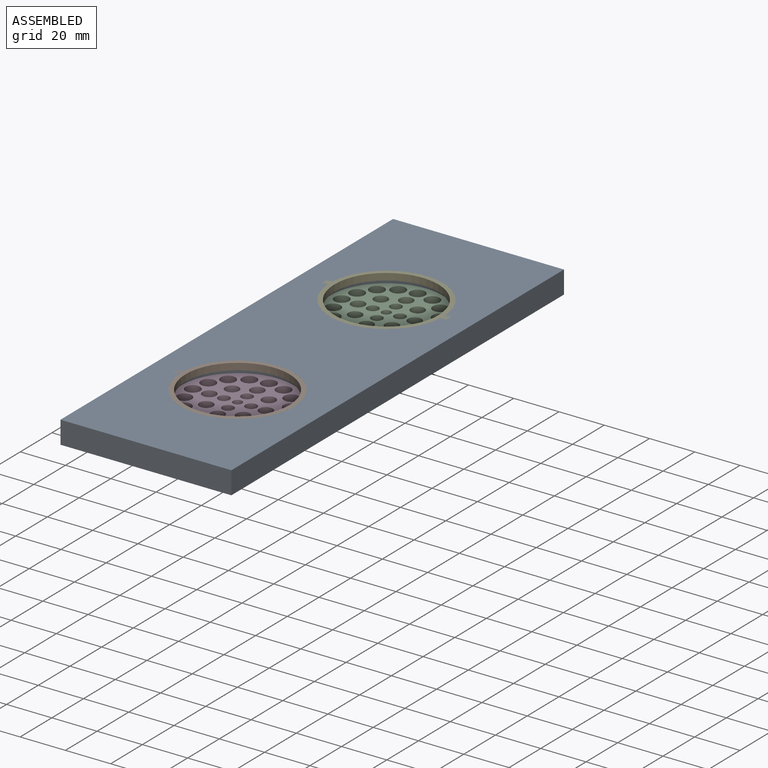
[diagram: assembled view]
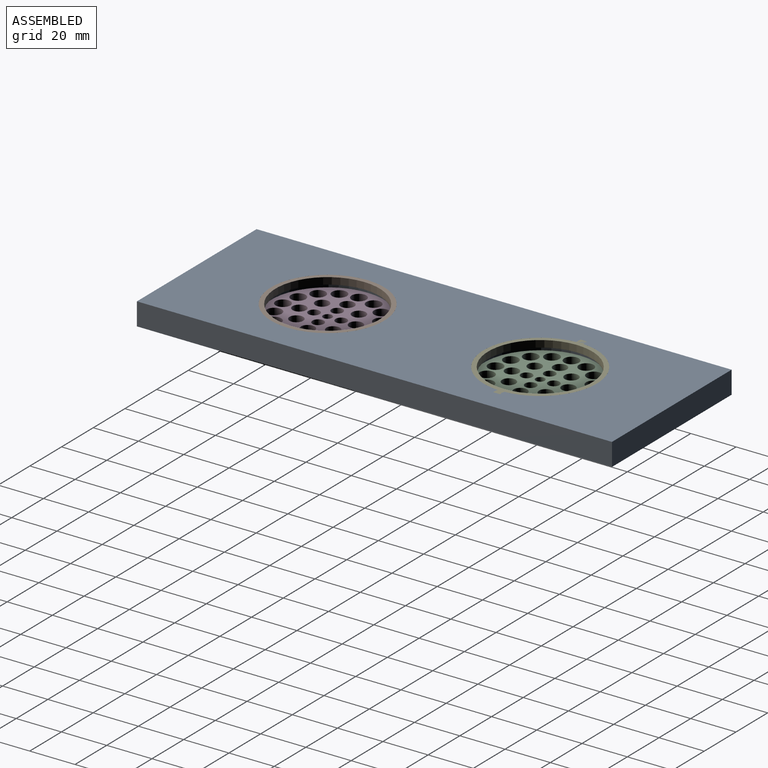
[diagram: assembled view, second angle]
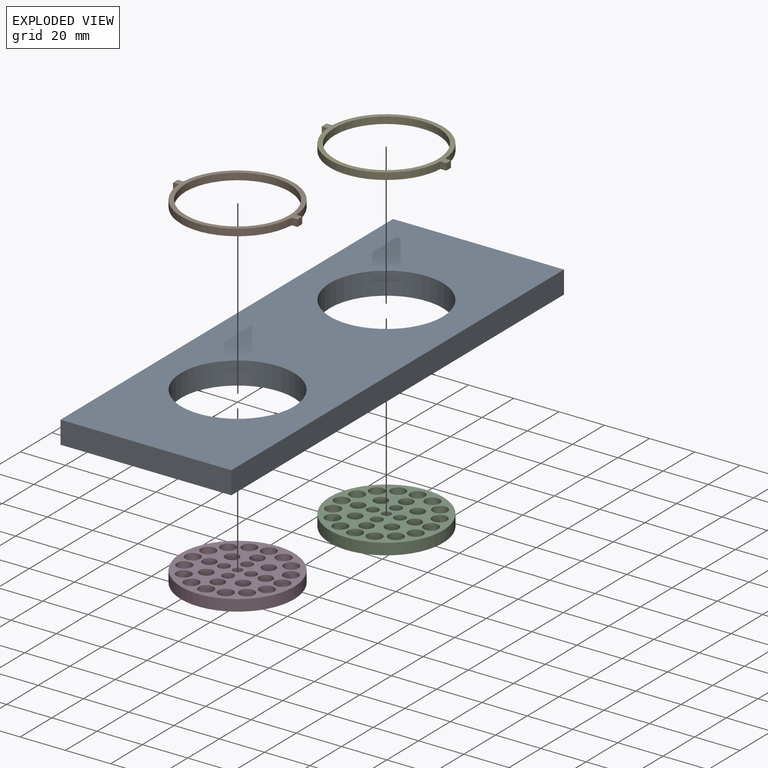
[diagram: exploded view]
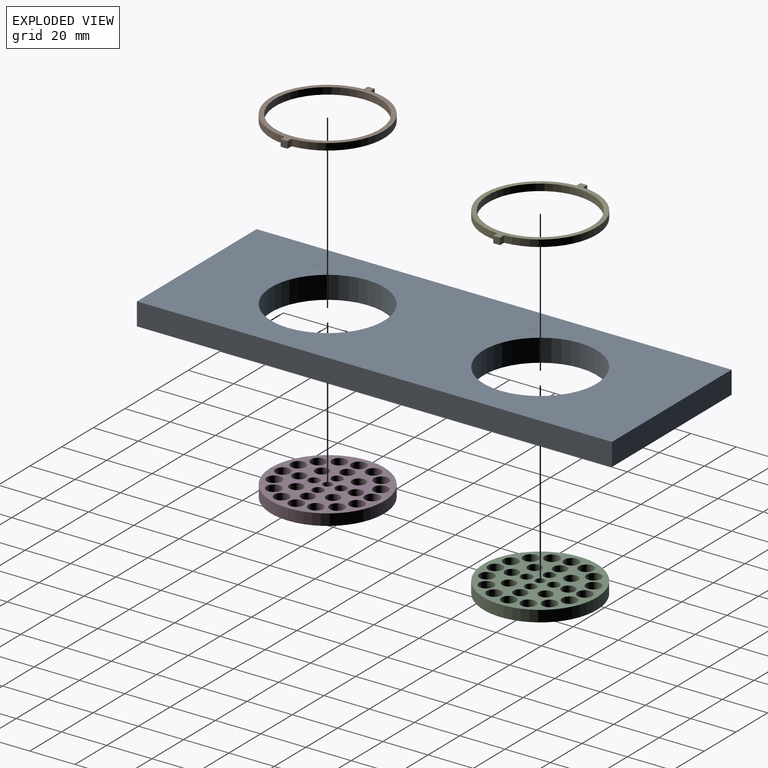
[diagram: exploded view, second angle]
ASSEMBLY  parts=5 mates=2
PART A: 8 faces, bbox 75.5x209.9x10 mm
  f0: plane 209.88x10mm, normal (1,0,0), area 2098.8mm2, adj f1,f5,f6,f7
  f1: plane 75.51x10mm, normal (0,1,0), area 755.1mm2, adj f0,f2,f6,f7
  f2: plane 209.88x10mm, normal (-1,0,0), area 2098.8mm2, adj f1,f5,f6,f7
  f3: cylinder r=25mm len=50mm, axis (0,0,-1), area 1570.8mm2, adj f6,f7
  f4: cylinder r=25mm len=50mm, axis (0,0,-1), area 1570.8mm2, adj f6,f7
  f5: plane 75.51x10mm, normal (0,-1,0), area 755.1mm2, adj f0,f2,f6,f7
  f6: plane 209.88x75.51mm, normal (0,0,1), area 11920.5mm2, adj f0,f1,f2,f3,f4,f5
  f7: plane 209.88x75.51mm, normal (0,0,-1), area 11920.5mm2, adj f0,f1,f2,f3,f4,f5
PART B: 11 faces, bbox 55x50x3 mm
  f0: plane 3x2.55mm, normal (0,1,0), area 7.6mm2, adj f1,f7,f9,f10
  f1: cylinder r=25mm len=49.91mm, axis (0,0,-1), area 226.6mm2, adj f0,f2,f9,f10
  f2: plane 3x2.55mm, normal (0,1,0), area 7.6mm2, adj f1,f3,f9,f10
  f3: plane 3x3mm, normal (-1,0,0), area 9mm2, adj f2,f4,f9,f10
  f4: plane 3x2.55mm, normal (0,-1,0), area 7.6mm2, adj f3,f5,f9,f10
  f5: cylinder r=25mm len=49.91mm, axis (0,0,-1), area 226.6mm2, adj f4,f6,f9,f10
  f6: plane 3x2.55mm, normal (0,-1,0), area 7.6mm2, adj f5,f7,f9,f10
  f7: plane 3x3mm, normal (1,0,0), area 9mm2, adj f0,f6,f9,f10
  f8: cylinder r=23mm len=46mm, axis (0,0,-1), area 433.5mm2, adj f9,f10
  f9: plane 55x50mm, normal (0,0,1), area 316.7mm2, adj f0,f1,f2,f3,f4,f5,f6,f7
  f10: plane 55x50mm, normal (0,0,-1), area 316.7mm2, adj f0,f1,f2,f3,f4,f5,f6,f7
PART C: 32 faces, bbox 50x50x5 mm
  f0: cylinder r=3.25mm len=6.5mm, axis (0,0,-1), area 102.1mm2, adj f30,f31
  f1: cylinder r=3mm len=6mm, axis (0,0,-1), area 94.2mm2, adj f30,f31
  f2: cylinder r=2.5mm len=5mm, axis (0,0,-1), area 78.5mm2, adj f30,f31
  f3: cylinder r=2mm len=5mm, axis (0,0,-1), area 62.8mm2, adj f30,f31
  f4: cylinder r=2.5mm len=5mm, axis (0,0,-1), area 78.5mm2, adj f30,f31
  f5: cylinder r=3mm len=6mm, axis (0,0,-1), area 94.2mm2, adj f30,f31
  f6: cylinder r=3.25mm len=6.5mm, axis (0,0,-1), area 102.1mm2, adj f30,f31
  f7: cylinder r=2.5mm len=5mm, axis (0,0,-1), area 78.5mm2, adj f30,f31
  f8: cylinder r=3mm len=6mm, axis (0,0,-1), area 94.2mm2, adj f30,f31
  f9: cylinder r=3.25mm len=6.5mm, axis (0,0,-1), area 102.1mm2, adj f30,f31
  f10: cylinder r=2.5mm len=5mm, axis (0,0,-1), area 78.5mm2, adj f30,f31
  f11: cylinder r=3mm len=6mm, axis (0,0,-1), area 94.2mm2, adj f30,f31
  f12: cylinder r=3.25mm len=6.5mm, axis (0,0,-1), area 102.1mm2, adj f30,f31
  f13: cylinder r=3.25mm len=6.5mm, axis (0,0,-1), area 102.1mm2, adj f30,f31
  f14: cylinder r=3.25mm len=6.5mm, axis (0,0,-1), area 102.1mm2, adj f30,f31
  f15: cylinder r=3.25mm len=6.5mm, axis (0,0,-1), area 102.1mm2, adj f30,f31
  f16: cylinder r=3.25mm len=6.5mm, axis (0,0,-1), area 102.1mm2, adj f30,f31
  f17: cylinder r=3mm len=6mm, axis (0,0,-1), area 94.2mm2, adj f30,f31
  f18: cylinder r=3mm len=6mm, axis (0,0,-1), area 94.2mm2, adj f30,f31
  f19: cylinder r=3mm len=6mm, axis (0,0,-1), area 94.2mm2, adj f30,f31
  f20: cylinder r=3mm len=6mm, axis (0,0,-1), area 94.2mm2, adj f30,f31
  f21: cylinder r=3.25mm len=6.5mm, axis (0,0,-1), area 102.1mm2, adj f30,f31
  f22: cylinder r=3.25mm len=6.5mm, axis (0,0,-1), area 102.1mm2, adj f30,f31
  f23: cylinder r=3.25mm len=6.5mm, axis (0,0,-1), area 102.1mm2, adj f30,f31
  f24: cylinder r=3.25mm len=6.5mm, axis (0,0,-1), area 102.1mm2, adj f30,f31
  f25: cylinder r=3.25mm len=6.5mm, axis (0,0,-1), area 102.1mm2, adj f30,f31
  f26: cylinder r=3.25mm len=6.5mm, axis (0,0,-1), area 102.1mm2, adj f30,f31
  f27: cylinder r=3.25mm len=6.5mm, axis (0,0,-1), area 102.1mm2, adj f30,f31
  f28: cylinder r=3.25mm len=6.5mm, axis (0,0,-1), area 102.1mm2, adj f30,f31
  f29: cylinder r=25mm len=50mm, axis (0,0,-1), area 785.4mm2, adj f30,f31
  f30: plane 50x50mm, normal (0,0,1), area 1115.3mm2, adj f0,f1,f2,f3,f4,f5,f6,f7
  f31: plane 50x50mm, normal (0,0,-1), area 1115.3mm2, adj f0,f1,f2,f3,f4,f5,f6,f7
PART D: same geometry as C
PART E: same geometry as B
PLACE A rot(axis=(0,1,0),180deg) t=(-170.78,51.16,96.99)mm
PLACE B t=(-170.78,4.06,93.99)mm
PLACE C rot(axis=(0,0,1),180deg) t=(-170.78,97.98,86.99)mm
PLACE D t=(-170.78,4.06,86.99)mm
PLACE E rot(axis=(0,0,1),180deg) t=(-170.78,97.98,93.99)mm
MATE cylindrical D.f3 <-> A.f4  axis (0,0,-1) through (-170.78,4.06,86.99)mm
MATE fastened A.f3 <-> C.f3  axis (0,0,-1) through (-170.78,97.98,86.99)mm
